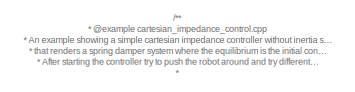
[diagram: root canvas - part 1/2, top center region]
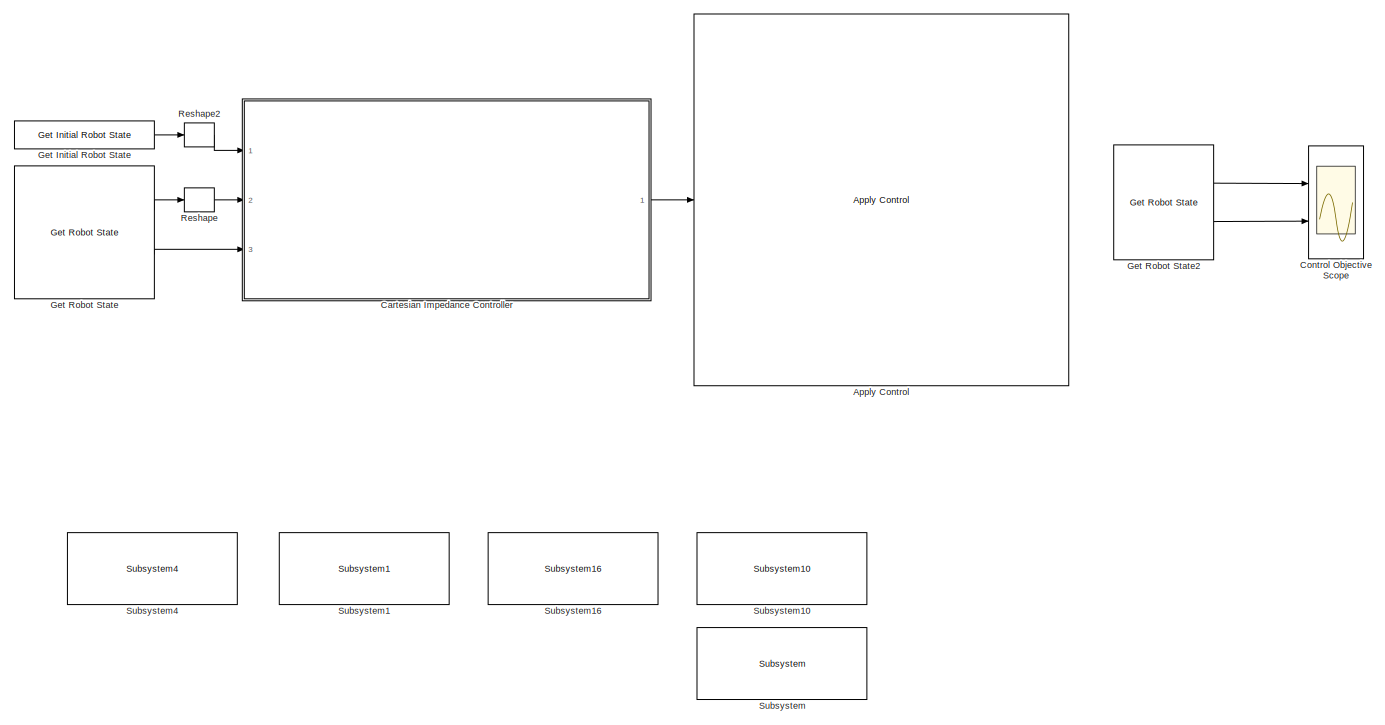
[diagram: root canvas - part 2/2, full width, middle band]
MODEL slx_07af8cf31ae9
KIND model
CONFIG AbsTol = auto
CONFIG EnableMultiTasking = on
CONFIG FixedStep = 0.001
CONFIG MaxStep = auto
CONFIG MinStep = auto
CONFIG PreLoadFcn = demos_common_configs();\n\ncollision_behavior = ones(1,52)*100;
CONFIG RelTol = 1e-3
CONFIG SampleTimeConstraint = Unconstrained
CONFIG SolverName = FixedStepDiscrete
CONFIG StartTime = 0.0
CONFIG StopTime = inf
BLOCK [Reference] Apply Control  REF=franka_simulink_library/Apply Control
  Ports = [1]
  SourceBlock = franka_simulink_library/Apply Control
  SourceProductName = Franka Emika
  UserDataPersistent = on
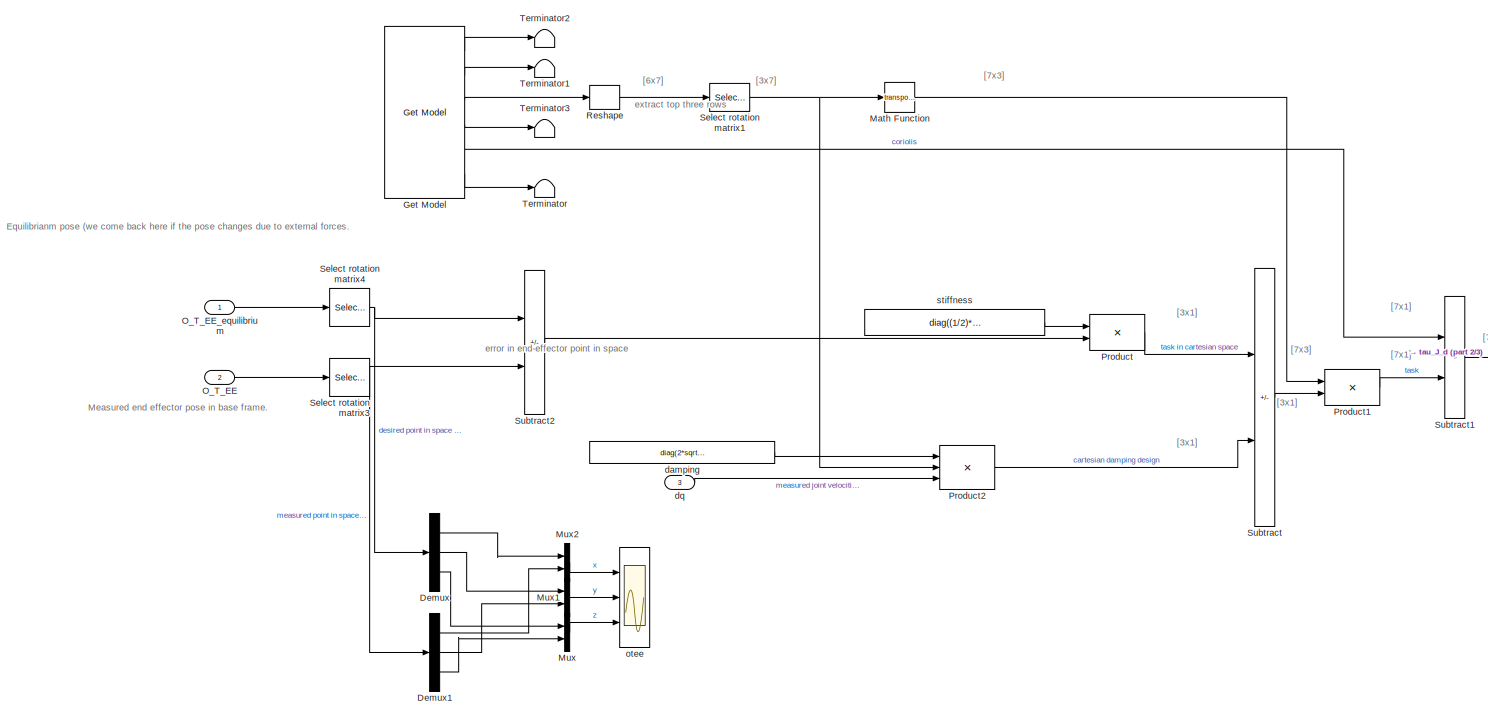
[diagram: Cartesian Impedance Controller - part 1/3, full width, top band]
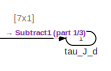
[diagram: Cartesian Impedance Controller - part 2/3, top right region]
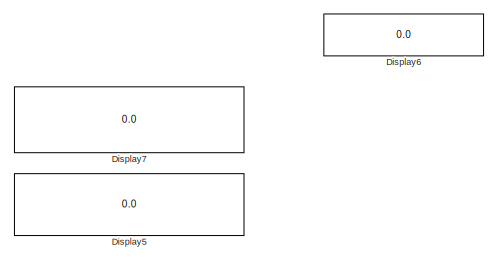
[diagram: Cartesian Impedance Controller - part 3/3, bottom left region]
BLOCK [SubSystem] Cartesian Impedance Controller
  Ports = [3, 1]
  RequestExecContextInheritance = off
BLOCK [Demux] Cartesian Impedance Controller/Demux
  Outputs = 3
  Ports = [1, 3]
BLOCK [Demux] Cartesian Impedance Controller/Demux1
  Outputs = 3
  Ports = [1, 3]
BLOCK [Display] Cartesian Impedance Controller/Display5
  Decimation = 1
  Ports = [1]
BLOCK [Display] Cartesian Impedance Controller/Display6
  Decimation = 1
  Ports = [1]
BLOCK [Display] Cartesian Impedance Controller/Display7
  Decimation = 1
  Ports = [1]
BLOCK [Reference] Cartesian Impedance Controller/Get Model  REF=franka_simulink_library/Get Model
  Ports = [0, 6]
  SourceBlock = franka_simulink_library/Get Model
  SourceProductName = Franka Emika
BLOCK [Math] Cartesian Impedance Controller/Math Function
  Operator = transpose
  Ports = [1, 1]
  SignedPower = on
BLOCK [Mux] Cartesian Impedance Controller/Mux
  DisplayOption = bar
  Inputs = 2
  Ports = [2, 1]
BLOCK [Mux] Cartesian Impedance Controller/Mux1
  DisplayOption = bar
  Inputs = 2
  Ports = [2, 1]
BLOCK [Mux] Cartesian Impedance Controller/Mux2
  DisplayOption = bar
  Inputs = 2
  Ports = [2, 1]
BLOCK [Inport] Cartesian Impedance Controller/O_T_EE
  Port = 2
BLOCK [Inport] Cartesian Impedance Controller/O_T_EE_equilibrium
BLOCK [Product] Cartesian Impedance Controller/Product
  Multiplication = Matrix(*)
  Ports = [2, 1]
BLOCK [Product] Cartesian Impedance Controller/Product1
  Multiplication = Matrix(*)
  Ports = [2, 1]
BLOCK [Product] Cartesian Impedance Controller/Product2
  Inputs = 3
  Multiplication = Matrix(*)
  Ports = [3, 1]
BLOCK [Reshape] Cartesian Impedance Controller/Reshape
  OutputDimensionality = Customize
  OutputDimensions = [6,7]
  Ports = [1, 1]
BLOCK [Selector] Cartesian Impedance Controller/Select rotation matrix1
  IndexOptions = Index vector (dialog),Index vector (dialog)
  Indices = [1,2,3],[1 2 3 4 5 6 7]
  InputPortWidth = 3
  NumberOfDimensions = 2
  OutputSizes = 1
  Ports = [1, 1]
BLOCK [Selector] Cartesian Impedance Controller/Select rotation matrix3
  IndexOptions = Index vector (dialog),Index vector (dialog)
  Indices = [1,2,3],[4]
  InputPortWidth = 3
  NumberOfDimensions = 2
  OutputSizes = 1
  Ports = [1, 1]
BLOCK [Selector] Cartesian Impedance Controller/Select rotation matrix4
  IndexOptions = Index vector (dialog),Index vector (dialog)
  Indices = [1,2,3],[4]
  InputPortWidth = 3
  NumberOfDimensions = 2
  OutputSizes = 1
  Ports = [1, 1]
BLOCK [Sum] Cartesian Impedance Controller/Subtract
  IconShape = rectangular
  Inputs = +-
  Ports = [2, 1]
BLOCK [Sum] Cartesian Impedance Controller/Subtract1
  IconShape = rectangular
  Ports = [2, 1]
BLOCK [Sum] Cartesian Impedance Controller/Subtract2
  IconShape = rectangular
  Inputs = +-
  Ports = [2, 1]
BLOCK [Terminator] Cartesian Impedance Controller/Terminator
BLOCK [Terminator] Cartesian Impedance Controller/Terminator1
BLOCK [Terminator] Cartesian Impedance Controller/Terminator2
BLOCK [Terminator] Cartesian Impedance Controller/Terminator3
BLOCK [Constant] Cartesian Impedance Controller/damping
  NameLocation = top
  Value = diag(2*sqrt([150.0, 150.0, 150.0]))
  VectorParams1D = off
BLOCK [Inport] Cartesian Impedance Controller/dq
  Port = 3
BLOCK [Scope] Cartesian Impedance Controller/otee
  ExtModeUploadOption = log
  Floating = off
  NumInputPorts = 3
  Ports = [3]
  ScopeSpecificationString = Simulink.scopes.TimeScopeBlockCfg('CurrentConfiguration', extmgr.ConfigurationSet(extmgr.Configuration('Core','General UI',true),extmgr.Configuration('Core','Source UI',true),extmgr.Configuration('Sources','WiredSimulink',true,'DataLoggingVariableName','ScopeData1','DataLogging',true,'DataLoggingSaveFormat','StructureWithTime'),extmgr.Configuration('Visuals','Time Domain',true,'SerializedDisplays'...<+1691ch>
BLOCK [Constant] Cartesian Impedance Controller/stiffness
  NameLocation = top
  Value = diag((1/2)*[150.0, 150.0, 150.0])
  VectorParams1D = off
BLOCK [Outport] Cartesian Impedance Controller/tau_J_d
  VectorParamsAs1DForOutWhenUnconnected = off
BLOCK [Scope] Control Objective Scope
  Floating = off
  NumInputPorts = 2
  Ports = [2]
  ScopeSpecificationString = Simulink.scopes.TimeScopeBlockCfg('CurrentConfiguration', extmgr.ConfigurationSet(extmgr.Configuration('Core','General UI',true),extmgr.Configuration('Core','Source UI',true),extmgr.Configuration('Sources','WiredSimulink',true,'DataLoggingVariableName','ScopeData1','DataLoggingSaveFormat','StructureWithTime','DataLoggingLimitDataPoints',true,'DataLoggingDecimation','1','DataLoggingDecimateData',tr...<+2899ch>
BLOCK [Reference] Get Initial Robot State  REF=franka_simulink_library/Get Initial Robot State
  Ports = [0, 1]
  SourceBlock = franka_simulink_library/Get Initial Robot State
  SourceProductName = Franka Emika
BLOCK [Reference] Get Robot State  REF=franka_simulink_library/Get Robot State
  Ports = [0, 2]
  SourceBlock = franka_simulink_library/Get Robot State
  SourceProductName = Franka Emika
BLOCK [Reference] Get Robot State2  REF=franka_simulink_library/Get Robot State
  Ports = [0, 2]
  SourceBlock = franka_simulink_library/Get Robot State
  SourceProductName = Franka Emika
BLOCK [Reshape] Reshape
  OutputDimensionality = Customize
  OutputDimensions = [4,4]
  Ports = [1, 1]
BLOCK [Reshape] Reshape2
  OutputDimensionality = Customize
  OutputDimensions = [4,4]
  Ports = [1, 1]
BLOCK [Reference] Subsystem  REF=franka_simulink_library_misc/Subsystem
  Ports = []
  SourceBlock = franka_simulink_library_misc/Subsystem
BLOCK [Reference] Subsystem1  REF=franka_simulink_library_misc/Subsystem1
  Ports = []
  SourceBlock = franka_simulink_library_misc/Subsystem1
BLOCK [Reference] Subsystem10  REF=franka_simulink_library_misc/Subsystem10
  Ports = []
  SourceBlock = franka_simulink_library_misc/Subsystem10
BLOCK [Reference] Subsystem16  REF=franka_simulink_library_misc/Subsystem16
  Ports = []
  SourceBlock = franka_simulink_library_misc/Subsystem16
BLOCK [Reference] Subsystem4  REF=franka_simulink_library_misc/Subsystem4
  Ports = []
  SourceBlock = franka_simulink_library_misc/Subsystem4
ANNOTATION (root): /** * @example cartesian_impedance_control.cpp * An example showing a simple cartesian impedance controller without inertia shaping * that renders a spring damper system where the equilibrium is the initial configuration. * After starting the controller try to push the robot around and try different stiffness levels. * * @warning collision thresholds are set to high values. Make sure you have the ...<+21ch>
ANNOTATION Cartesian Impedance Controller: Equilibrianm pose (we come back here if the pose changes due to external forces.
ANNOTATION Cartesian Impedance Controller: Measured end effector pose in base frame.
ANNOTATION Cartesian Impedance Controller: [3x1]
ANNOTATION Cartesian Impedance Controller: [3x7]
ANNOTATION Cartesian Impedance Controller: [6x7]
ANNOTATION Cartesian Impedance Controller: [7x1]
ANNOTATION Cartesian Impedance Controller: [7x3]
ANNOTATION Cartesian Impedance Controller: error in end-effector point in space
ANNOTATION Cartesian Impedance Controller: extract top three rows
LINE Cartesian Impedance Controller/Demux1:1 -> Cartesian Impedance Controller/Mux2:2
LINE Cartesian Impedance Controller/Demux1:2 -> Cartesian Impedance Controller/Mux1:2
LINE Cartesian Impedance Controller/Demux1:3 -> Cartesian Impedance Controller/Mux:2
LINE Cartesian Impedance Controller/Demux:1 -> Cartesian Impedance Controller/Mux2:1
LINE Cartesian Impedance Controller/Demux:2 -> Cartesian Impedance Controller/Mux1:1
LINE Cartesian Impedance Controller/Demux:3 -> Cartesian Impedance Controller/Mux:1
LINE Cartesian Impedance Controller/Get Model:1 -> Cartesian Impedance Controller/Terminator2:1
LINE Cartesian Impedance Controller/Get Model:2 -> Cartesian Impedance Controller/Terminator1:1
LINE Cartesian Impedance Controller/Get Model:3 -> Cartesian Impedance Controller/Reshape:1
LINE Cartesian Impedance Controller/Get Model:4 -> Cartesian Impedance Controller/Terminator3:1
LINE Cartesian Impedance Controller/Get Model:5 -> Cartesian Impedance Controller/Subtract1:1
LINE Cartesian Impedance Controller/Get Model:6 -> Cartesian Impedance Controller/Terminator:1
LINE Cartesian Impedance Controller/Math Function:1 -> Cartesian Impedance Controller/Product1:1
LINE Cartesian Impedance Controller/Mux1:1 -> Cartesian Impedance Controller/otee:2
LINE Cartesian Impedance Controller/Mux2:1 -> Cartesian Impedance Controller/otee:1
LINE Cartesian Impedance Controller/Mux:1 -> Cartesian Impedance Controller/otee:3
LINE Cartesian Impedance Controller/O_T_EE:1 -> Cartesian Impedance Controller/Select rotation matrix3:1
LINE Cartesian Impedance Controller/O_T_EE_equilibrium:1 -> Cartesian Impedance Controller/Select rotation matrix4:1
LINE Cartesian Impedance Controller/Product1:1 -> Cartesian Impedance Controller/Subtract1:2
LINE Cartesian Impedance Controller/Product2:1 -> Cartesian Impedance Controller/Subtract:2
LINE Cartesian Impedance Controller/Product:1 -> Cartesian Impedance Controller/Subtract:1
LINE Cartesian Impedance Controller/Reshape:1 -> Cartesian Impedance Controller/Select rotation matrix1:1
NET Cartesian Impedance Controller/Select rotation matrix1:1 -> Cartesian Impedance Controller/Math Function:1, Cartesian Impedance Controller/Product2:2
NET Cartesian Impedance Controller/Select rotation matrix3:1 -> Cartesian Impedance Controller/Demux1:1, Cartesian Impedance Controller/Subtract2:2
NET Cartesian Impedance Controller/Select rotation matrix4:1 -> Cartesian Impedance Controller/Demux:1, Cartesian Impedance Controller/Subtract2:1
LINE Cartesian Impedance Controller/Subtract1:1 -> Cartesian Impedance Controller/tau_J_d:1
LINE Cartesian Impedance Controller/Subtract2:1 -> Cartesian Impedance Controller/Product:2
LINE Cartesian Impedance Controller/Subtract:1 -> Cartesian Impedance Controller/Product1:2
LINE Cartesian Impedance Controller/damping:1 -> Cartesian Impedance Controller/Product2:1
LINE Cartesian Impedance Controller/dq:1 -> Cartesian Impedance Controller/Product2:3
LINE Cartesian Impedance Controller/stiffness:1 -> Cartesian Impedance Controller/Product:1
LINE Cartesian Impedance Controller:1 -> Apply Control:1
LINE Get Initial Robot State:1 -> Reshape2:1
LINE Get Robot State2:1 -> Control Objective Scope:1
LINE Get Robot State2:2 -> Control Objective Scope:2
LINE Get Robot State:1 -> Reshape:1
LINE Get Robot State:2 -> Cartesian Impedance Controller:3
LINE Reshape2:1 -> Cartesian Impedance Controller:1
LINE Reshape:1 -> Cartesian Impedance Controller:2
note: NET lines group one-source signal fan-out (src -> all destinations, sorted); 1:1 wires keep LINE
